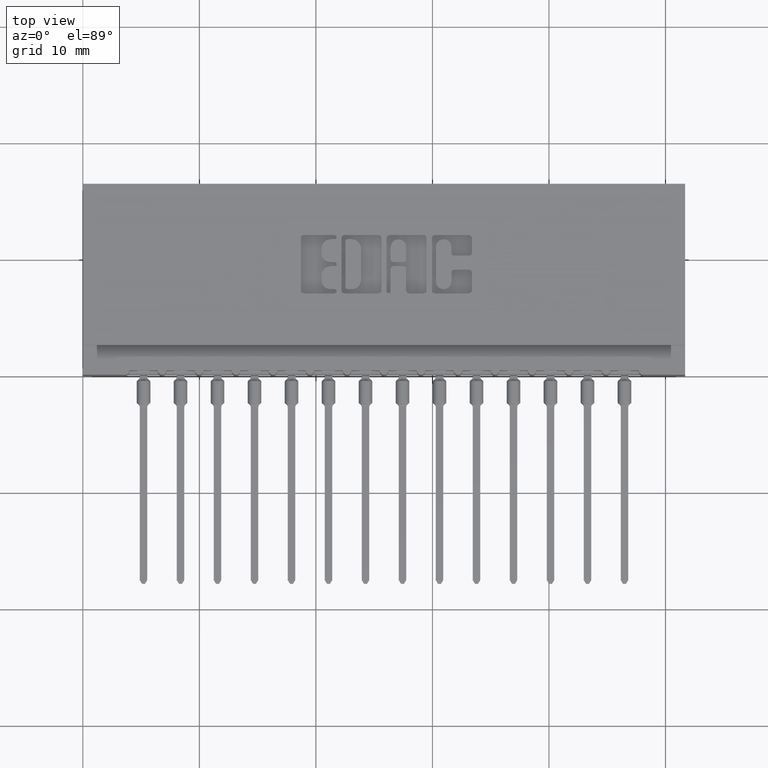
[diagram: clean part render]
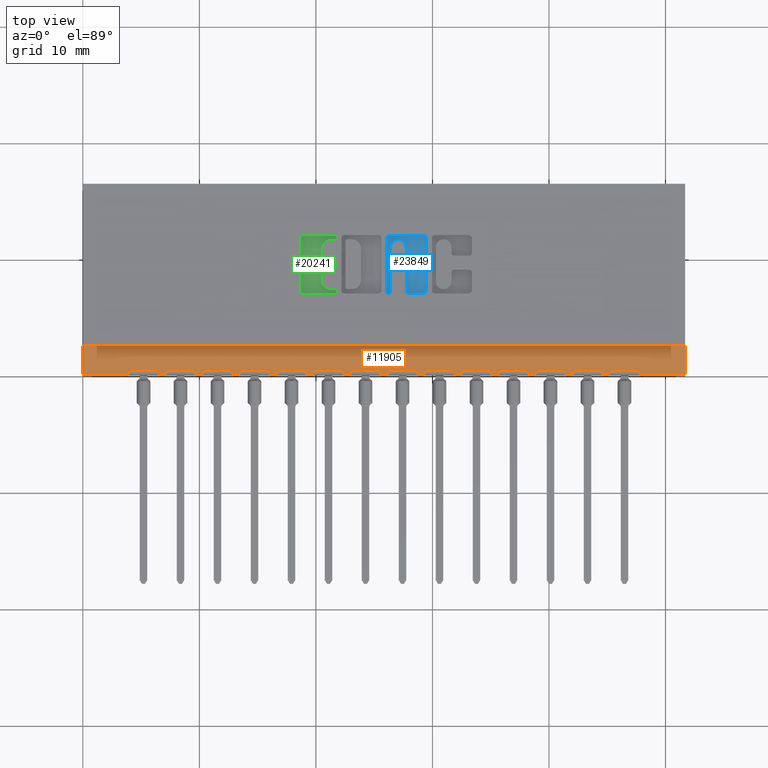
[diagram: same view with three faces highlighted in distinct colors, each labeled with its STEP entity id]
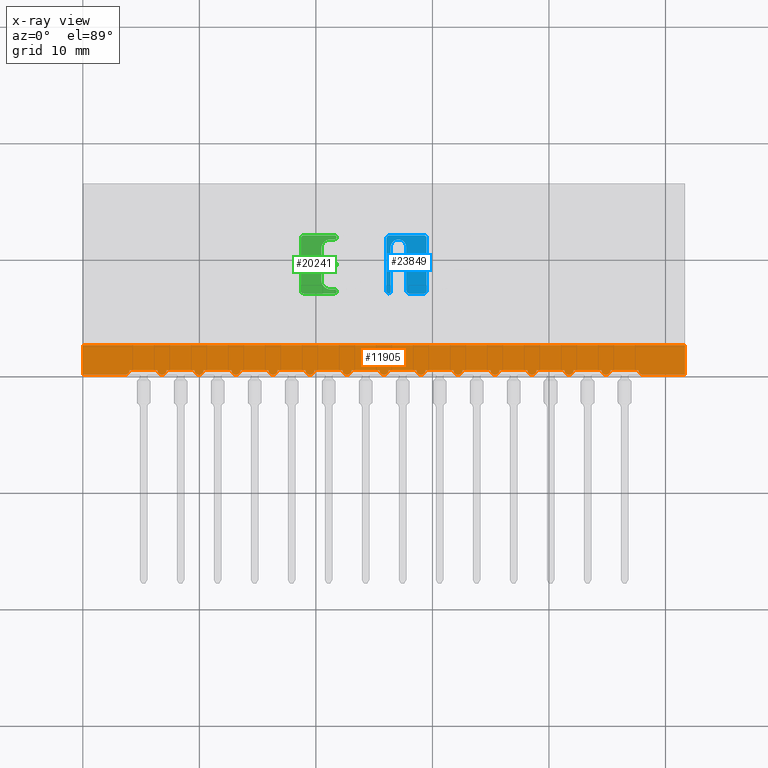
[diagram: x-ray of the same camera — body ghosted, the three highlighted faces saturated]
A machine part, top view with three faces highlighted in distinct colors.
The next image is the same camera in x-ray (body ghosted, the three faces saturated) — at least one of them is partly hidden behind the body in this view.
Their STEP definitions:

[orange] entity #11905 — the highlighted planar face has unit normal (0, 0, -1).
#86 = CARTESIAN_POINT ( 'NONE',  ( 1.782499999999999529, 0.01499999999999997169, -0.02500000000000000486 ) ) ;
#128 = LINE ( 'NONE', #6222, #22510 ) ;
#239 = EDGE_CURVE ( 'NONE', #12736, #5814, #24389, .T. ) ;
#518 = CARTESIAN_POINT ( 'NONE',  ( 1.407499999999999751, 0.01499999999999997169, -0.02500000000000000486 ) ) ;
#655 = DIRECTION ( 'NONE',  ( 1.000000000000000000, 0.0000000000000000000, 0.0000000000000000000 ) ) ;
#848 = AXIS2_PLACEMENT_3D ( 'NONE', #22015, #18067, #655 ) ;
#864 = VECTOR ( 'NONE', #9480, 39.37007874015748143 ) ;
#1038 = CIRCLE ( 'NONE', #12799, 0.01499999999999997689 ) ;
#1082 = EDGE_CURVE ( 'NONE', #12365, #24422, #5032, .T. ) ;
#1098 = DIRECTION ( 'NONE',  ( 1.000000000000000000, -0.0000000000000000000, -2.307304048702925122E-16 ) ) ;
#1166 = VERTEX_POINT ( 'NONE', #14142 ) ;
#1418 = CARTESIAN_POINT ( 'NONE',  ( 1.558999999999999719, 0.01499999999999999424, -0.02500000000000003608 ) ) ;
#1553 = DIRECTION ( 'NONE',  ( 1.000000000000000000, 0.0000000000000000000, 0.0000000000000000000 ) ) ;
#1560 = CIRCLE ( 'NONE', #1974, 0.01499999999999997689 ) ;
#1640 = ORIENTED_EDGE ( 'NONE', *, *, #19123, .F. ) ;
#1650 = LINE ( 'NONE', #7605, #3839 ) ;
#1698 = EDGE_CURVE ( 'NONE', #16683, #14147, #5165, .T. ) ;
#1737 = CARTESIAN_POINT ( 'NONE',  ( 1.502499999999999503, 0.01499999999999997169, -0.02500000000000000486 ) ) ;
#1791 = VERTEX_POINT ( 'NONE', #10758 ) ;
#1807 = CARTESIAN_POINT ( 'NONE',  ( 2.035000000000000142, 0.0000000000000000000, -0.02500000000000000486 ) ) ;
#1940 = VECTOR ( 'NONE', #15747, 39.37007874015748143 ) ;
#1974 = AXIS2_PLACEMENT_3D ( 'NONE', #15631, #17931, #17674 ) ;
#2009 = VECTOR ( 'NONE', #10095, 39.37007874015748143 ) ;
#2016 = DIRECTION ( 'NONE',  ( -0.0000000000000000000, -1.000000000000000000, -0.0000000000000000000 ) ) ;
#2036 = AXIS2_PLACEMENT_3D ( 'NONE', #11647, #17259, #15342 ) ;
#2233 = ORIENTED_EDGE ( 'NONE', *, *, #2770, .T. ) ;
#2296 = EDGE_CURVE ( 'NONE', #4362, #10948, #9321, .T. ) ;
#2431 = CARTESIAN_POINT ( 'NONE',  ( 0.0000000000000000000, 0.0000000000000000000, -0.02500000000000000486 ) ) ;
#2770 = EDGE_CURVE ( 'NONE', #19837, #16616, #11321, .T. ) ;
#2775 = CARTESIAN_POINT ( 'NONE',  ( 2.035000000000000142, 0.0000000000000000000, -0.02500000000000000486 ) ) ;
#2998 = CARTESIAN_POINT ( 'NONE',  ( 1.127499999999999725, 0.01499999999999997169, -0.02500000000000000486 ) ) ;
#3040 = VERTEX_POINT ( 'NONE', #10912 ) ;
#3240 = DIRECTION ( 'NONE',  ( 1.000000000000000000, 0.0000000000000000000, 0.0000000000000000000 ) ) ;
#3346 = DIRECTION ( 'NONE',  ( 1.000000000000000000, 0.0000000000000000000, 0.0000000000000000000 ) ) ;
#3575 = AXIS2_PLACEMENT_3D ( 'NONE', #18047, #14105, #21861 ) ;
#3669 = CARTESIAN_POINT ( 'NONE',  ( 0.3089999999999997193, 0.01499999999999999424, -0.02500000000000003608 ) ) ;
#3799 = CARTESIAN_POINT ( 'NONE',  ( 1.252499999999999503, 0.01499999999999997169, -0.02500000000000000486 ) ) ;
#3839 = VECTOR ( 'NONE', #11808, 39.37007874015748143 ) ;
#3852 = CARTESIAN_POINT ( 'NONE',  ( 1.267499999999999627, 0.01499999999999997169, -0.02500000000000000486 ) ) ;
#3895 = CARTESIAN_POINT ( 'NONE',  ( 0.6574999999999997513, 0.01499999999999997169, -0.02500000000000000486 ) ) ;
#3917 = ORIENTED_EDGE ( 'NONE', *, *, #7296, .T. ) ;
#3923 = CARTESIAN_POINT ( 'NONE',  ( 0.2524999999999996692, 0.01499999999999997169, -0.02500000000000000486 ) ) ;
#3973 = CIRCLE ( 'NONE', #11287, 0.01499999999999997689 ) ;
#4150 = DIRECTION ( 'NONE',  ( 1.000000000000000000, -0.0000000000000000000, -2.307304048702925122E-16 ) ) ;
#4159 = LINE ( 'NONE', #18022, #20676 ) ;
#4362 = VERTEX_POINT ( 'NONE', #7192 ) ;
#4387 = ORIENTED_EDGE ( 'NONE', *, *, #12747, .F. ) ;
#4582 = ORIENTED_EDGE ( 'NONE', *, *, #16690, .T. ) ;
#4599 = CIRCLE ( 'NONE', #8641, 0.01499999999999997689 ) ;
#4631 = DIRECTION ( 'NONE',  ( -0.0000000000000000000, 0.0000000000000000000, 1.000000000000000000 ) ) ;
#4911 = CARTESIAN_POINT ( 'NONE',  ( 1.377499999999999725, 0.01499999999999997169, -0.02500000000000000486 ) ) ;
#5001 = DIRECTION ( 'NONE',  ( 1.000000000000000000, 0.0000000000000000000, 0.0000000000000000000 ) ) ;
#5032 = CIRCLE ( 'NONE', #24917, 0.01499999999999997689 ) ;
#5071 = DIRECTION ( 'NONE',  ( 1.000000000000000000, -0.0000000000000000000, -2.307304048702925122E-16 ) ) ;
#5099 = AXIS2_PLACEMENT_3D ( 'NONE', #23046, #15036, #1553 ) ;
#5133 = ORIENTED_EDGE ( 'NONE', *, *, #18195, .T. ) ;
#5148 = ORIENTED_EDGE ( 'NONE', *, *, #19202, .T. ) ;
#5165 = LINE ( 'NONE', #8976, #13189 ) ;
#5205 = ORIENTED_EDGE ( 'NONE', *, *, #22680, .T. ) ;
#5626 = CARTESIAN_POINT ( 'NONE',  ( 0.5174999999999996270, 0.01499999999999997169, -0.02500000000000000486 ) ) ;
#5647 = AXIS2_PLACEMENT_3D ( 'NONE', #23363, #11408, #11652 ) ;
#5682 = EDGE_CURVE ( 'NONE', #14993, #12365, #19050, .T. ) ;
#5686 = EDGE_CURVE ( 'NONE', #11686, #6920, #24530, .T. ) ;
#5814 = VERTEX_POINT ( 'NONE', #12054 ) ;
#5866 = AXIS2_PLACEMENT_3D ( 'NONE', #15954, #10230, #5897 ) ;
#5897 = DIRECTION ( 'NONE',  ( 1.000000000000000000, 0.0000000000000000000, 0.0000000000000000000 ) ) ;
#6061 = VERTEX_POINT ( 'NONE', #20814 ) ;
#6192 = LINE ( 'NONE', #7617, #23566 ) ;
#6222 = CARTESIAN_POINT ( 'NONE',  ( 1.433999999999999719, 0.01499999999999999424, -0.02500000000000003608 ) ) ;
#6394 = CARTESIAN_POINT ( 'NONE',  ( 0.6274999999999996136, 0.01499999999999997169, -0.02500000000000000486 ) ) ;
#6512 = DIRECTION ( 'NONE',  ( 1.000000000000000000, 0.0000000000000000000, 0.0000000000000000000 ) ) ;
#6513 = VERTEX_POINT ( 'NONE', #21128 ) ;
#6791 = VERTEX_POINT ( 'NONE', #3799 ) ;
#6861 = ORIENTED_EDGE ( 'NONE', *, *, #9540, .T. ) ;
#6896 = CARTESIAN_POINT ( 'NONE',  ( 1.517499999999999849, 0.01499999999999997169, -0.02500000000000000486 ) ) ;
#6920 = VERTEX_POINT ( 'NONE', #10285 ) ;
#6932 = CARTESIAN_POINT ( 'NONE',  ( 0.1574999999999997236, 0.01499999999999997169, -0.02500000000000000486 ) ) ;
#6933 = CARTESIAN_POINT ( 'NONE',  ( 1.642499999999999849, 0.01499999999999997169, -0.02500000000000000486 ) ) ;
#6967 = CARTESIAN_POINT ( 'NONE',  ( 0.6839999999999997193, 0.01499999999999999424, -0.02500000000000003608 ) ) ;
#7073 = VERTEX_POINT ( 'NONE', #10887 ) ;
#7177 = DIRECTION ( 'NONE',  ( -0.0000000000000000000, 0.0000000000000000000, 1.000000000000000000 ) ) ;
#7192 = CARTESIAN_POINT ( 'NONE',  ( 0.1424999999999997102, 0.0000000000000000000, -0.02500000000000000486 ) ) ;
#7284 = VERTEX_POINT ( 'NONE', #21569 ) ;
#7296 = EDGE_CURVE ( 'NONE', #19547, #7284, #9868, .T. ) ;
#7465 = CARTESIAN_POINT ( 'NONE',  ( 1.808999999999999719, 0.01499999999999999424, -0.02500000000000003608 ) ) ;
#7517 = DIRECTION ( 'NONE',  ( -1.000000000000000000, 0.0000000000000000000, -0.0000000000000000000 ) ) ;
#7605 = CARTESIAN_POINT ( 'NONE',  ( 0.5589999999999997193, 0.01499999999999999424, -0.02500000000000003608 ) ) ;
#7617 = CARTESIAN_POINT ( 'NONE',  ( 2.035000000000000142, 0.1000000000000000056, -0.02500000000000000486 ) ) ;
#7738 = CARTESIAN_POINT ( 'NONE',  ( 2.035000000000000142, 0.0000000000000000000, -0.02500000000000000486 ) ) ;
#7913 = DIRECTION ( 'NONE',  ( -0.0000000000000000000, 0.0000000000000000000, 1.000000000000000000 ) ) ;
#8056 = LINE ( 'NONE', #15822, #2009 ) ;
#8525 = EDGE_LOOP ( 'NONE', ( #4582, #11789, #16206, #20342, #1640, #17658, #14985, #11183, #4387, #2233, #5133, #18876, #16804, #9457, #11642, #19101, #14374, #18506, #5148, #21639, #25037, #11674, #17708, #12214, #18732, #19326, #5205, #10789, #20986, #15921, #13549, #6861, #14600, #3917 ) ) ;
#8641 = AXIS2_PLACEMENT_3D ( 'NONE', #3852, #7913, #9581 ) ;
#8732 = EDGE_CURVE ( 'NONE', #10570, #6791, #11382, .T. ) ;
#8976 = CARTESIAN_POINT ( 'NONE',  ( 1.058999999999999719, 0.01499999999999999424, -0.02500000000000003608 ) ) ;
#9193 = CARTESIAN_POINT ( 'NONE',  ( 2.035000000000000142, 0.1000000000000000056, -0.02500000000000000486 ) ) ;
#9226 = DIRECTION ( 'NONE',  ( 1.000000000000000000, -0.0000000000000000000, -2.307304048702925122E-16 ) ) ;
#9321 = LINE ( 'NONE', #21280, #12588 ) ;
#9377 = AXIS2_PLACEMENT_3D ( 'NONE', #14482, #12097, #10901 ) ;
#9432 = FACE_OUTER_BOUND ( 'NONE', #8525, .T. ) ;
#9457 = ORIENTED_EDGE ( 'NONE', *, *, #5682, .T. ) ;
#9480 = DIRECTION ( 'NONE',  ( 1.000000000000000000, -0.0000000000000000000, -2.307304048702925122E-16 ) ) ;
#9511 = EDGE_CURVE ( 'NONE', #21457, #18239, #6192, .T. ) ;
#9540 = EDGE_CURVE ( 'NONE', #1166, #3040, #13483, .T. ) ;
#9546 = AXIS2_PLACEMENT_3D ( 'NONE', #24352, #7177, #22459 ) ;
#9581 = DIRECTION ( 'NONE',  ( 1.000000000000000000, 0.0000000000000000000, 0.0000000000000000000 ) ) ;
#9722 = CARTESIAN_POINT ( 'NONE',  ( 1.183999999999999719, 0.01499999999999999424, -0.02500000000000003608 ) ) ;
#9793 = VECTOR ( 'NONE', #1098, 39.37007874015748143 ) ;
#9803 = PLANE ( 'NONE',  #23219 ) ;
#9868 = LINE ( 'NONE', #13554, #17390 ) ;
#10095 = DIRECTION ( 'NONE',  ( 1.000000000000000000, -0.0000000000000000000, -2.307304048702925122E-16 ) ) ;
#10230 = DIRECTION ( 'NONE',  ( -0.0000000000000000000, 0.0000000000000000000, 1.000000000000000000 ) ) ;
#10285 = CARTESIAN_POINT ( 'NONE',  ( 0.3774999999999996692, 0.01499999999999997169, -0.02500000000000000486 ) ) ;
#10459 = EDGE_CURVE ( 'NONE', #23257, #22394, #11775, .T. ) ;
#10570 = VERTEX_POINT ( 'NONE', #14151 ) ;
#10735 = EDGE_CURVE ( 'NONE', #22394, #7073, #11582, .T. ) ;
#10758 = CARTESIAN_POINT ( 'NONE',  ( 2.035000000000000142, 0.0000000000000000000, -0.02500000000000000486 ) ) ;
#10789 = ORIENTED_EDGE ( 'NONE', *, *, #18829, .T. ) ;
#10887 = CARTESIAN_POINT ( 'NONE',  ( 1.002499999999999725, 0.01499999999999997169, -0.02500000000000000486 ) ) ;
#10901 = DIRECTION ( 'NONE',  ( 1.000000000000000000, 0.0000000000000000000, 0.0000000000000000000 ) ) ;
#10912 = CARTESIAN_POINT ( 'NONE',  ( 1.627499999999999503, 0.01499999999999997169, -0.02500000000000000486 ) ) ;
#10930 = EDGE_CURVE ( 'NONE', #11599, #12736, #13412, .T. ) ;
#10948 = VERTEX_POINT ( 'NONE', #2431 ) ;
#10997 = DIRECTION ( 'NONE',  ( -0.0000000000000000000, 0.0000000000000000000, 1.000000000000000000 ) ) ;
#11183 = ORIENTED_EDGE ( 'NONE', *, *, #2296, .F. ) ;
#11287 = AXIS2_PLACEMENT_3D ( 'NONE', #14229, #21608, #14353 ) ;
#11321 = LINE ( 'NONE', #24676, #23440 ) ;
#11382 = LINE ( 'NONE', #9722, #864 ) ;
#11394 = VERTEX_POINT ( 'NONE', #1737 ) ;
#11408 = DIRECTION ( 'NONE',  ( -0.0000000000000000000, 0.0000000000000000000, 1.000000000000000000 ) ) ;
#11484 = DIRECTION ( 'NONE',  ( -1.000000000000000000, -0.0000000000000000000, -0.0000000000000000000 ) ) ;
#11553 = DIRECTION ( 'NONE',  ( 1.000000000000000000, -0.0000000000000000000, -2.307304048702925122E-16 ) ) ;
#11582 = LINE ( 'NONE', #21252, #21133 ) ;
#11599 = VERTEX_POINT ( 'NONE', #6394 ) ;
#11642 = ORIENTED_EDGE ( 'NONE', *, *, #1082, .T. ) ;
#11647 = CARTESIAN_POINT ( 'NONE',  ( 0.1424999999999997102, 0.01499999999999997169, -0.02500000000000000486 ) ) ;
#11651 = CARTESIAN_POINT ( 'NONE',  ( 1.657499999999999529, 0.01499999999999997169, -0.02500000000000000486 ) ) ;
#11652 = DIRECTION ( 'NONE',  ( 1.000000000000000000, 0.0000000000000000000, 0.0000000000000000000 ) ) ;
#11674 = ORIENTED_EDGE ( 'NONE', *, *, #10735, .T. ) ;
#11686 = VERTEX_POINT ( 'NONE', #14778 ) ;
#11693 = DIRECTION ( 'NONE',  ( 1.000000000000000000, -0.0000000000000000000, -2.307304048702925122E-16 ) ) ;
#11759 = AXIS2_PLACEMENT_3D ( 'NONE', #20005, #15939, #6512 ) ;
#11775 = CIRCLE ( 'NONE', #11759, 0.01499999999999997689 ) ;
#11789 = ORIENTED_EDGE ( 'NONE', *, *, #23373, .T. ) ;
#11802 = CARTESIAN_POINT ( 'NONE',  ( 0.5024999999999996136, 0.01499999999999997169, -0.02500000000000000486 ) ) ;
#11808 = DIRECTION ( 'NONE',  ( 1.000000000000000000, -0.0000000000000000000, -2.307304048702925122E-16 ) ) ;
#11905 = ADVANCED_FACE ( 'NONE', ( #9432 ), #9803, .F. ) ;
#11943 = LINE ( 'NONE', #7738, #24720 ) ;
#12054 = CARTESIAN_POINT ( 'NONE',  ( 0.7524999999999997247, 0.01499999999999997169, -0.02500000000000000486 ) ) ;
#12097 = DIRECTION ( 'NONE',  ( -0.0000000000000000000, 0.0000000000000000000, 1.000000000000000000 ) ) ;
#12179 = VECTOR ( 'NONE', #17306, 39.37007874015748143 ) ;
#12214 = ORIENTED_EDGE ( 'NONE', *, *, #1698, .T. ) ;
#12365 = VERTEX_POINT ( 'NONE', #11802 ) ;
#12588 = VECTOR ( 'NONE', #11484, 39.37007874015748143 ) ;
#12602 = CIRCLE ( 'NONE', #2036, 0.01500000000000001159 ) ;
#12661 = CARTESIAN_POINT ( 'NONE',  ( 0.8089999999999997193, 0.01499999999999999424, -0.02500000000000003608 ) ) ;
#12736 = VERTEX_POINT ( 'NONE', #3895 ) ;
#12747 = EDGE_CURVE ( 'NONE', #19837, #4362, #12602, .T. ) ;
#12799 = AXIS2_PLACEMENT_3D ( 'NONE', #6896, #4631, #5001 ) ;
#13134 = VECTOR ( 'NONE', #17138, 39.37007874015748143 ) ;
#13189 = VECTOR ( 'NONE', #9226, 39.37007874015748143 ) ;
#13412 = CIRCLE ( 'NONE', #848, 0.01499999999999997689 ) ;
#13483 = LINE ( 'NONE', #1418, #12179 ) ;
#13547 = EDGE_CURVE ( 'NONE', #24422, #11599, #1650, .T. ) ;
#13549 = ORIENTED_EDGE ( 'NONE', *, *, #14664, .T. ) ;
#13554 = CARTESIAN_POINT ( 'NONE',  ( 1.683999999999999497, 0.01499999999999999424, -0.02500000000000003608 ) ) ;
#13709 = CARTESIAN_POINT ( 'NONE',  ( 1.892499999999999627, 0.0000000000000000000, -0.02500000000000000486 ) ) ;
#13873 = VECTOR ( 'NONE', #23009, 39.37007874015748143 ) ;
#14105 = DIRECTION ( 'NONE',  ( -0.0000000000000000000, 0.0000000000000000000, 1.000000000000000000 ) ) ;
#14142 = CARTESIAN_POINT ( 'NONE',  ( 1.532499999999999529, 0.01499999999999997169, -0.02500000000000000486 ) ) ;
#14147 = VERTEX_POINT ( 'NONE', #2998 ) ;
#14151 = CARTESIAN_POINT ( 'NONE',  ( 1.157499999999999751, 0.01499999999999997169, -0.02500000000000000486 ) ) ;
#14229 = CARTESIAN_POINT ( 'NONE',  ( 1.767499999999999627, 0.01499999999999997169, -0.02500000000000000486 ) ) ;
#14251 = EDGE_CURVE ( 'NONE', #6920, #14993, #17264, .T. ) ;
#14353 = DIRECTION ( 'NONE',  ( 1.000000000000000000, 0.0000000000000000000, 0.0000000000000000000 ) ) ;
#14374 = ORIENTED_EDGE ( 'NONE', *, *, #10930, .T. ) ;
#14482 = CARTESIAN_POINT ( 'NONE',  ( 1.392499999999999627, 0.01499999999999997169, -0.02500000000000000486 ) ) ;
#14506 = EDGE_CURVE ( 'NONE', #14147, #10570, #16847, .T. ) ;
#14543 = CIRCLE ( 'NONE', #3575, 0.01499999999999997689 ) ;
#14600 = ORIENTED_EDGE ( 'NONE', *, *, #18440, .T. ) ;
#14664 = EDGE_CURVE ( 'NONE', #11394, #1166, #1038, .T. ) ;
#14764 = EDGE_CURVE ( 'NONE', #7073, #16683, #24988, .T. ) ;
#14778 = CARTESIAN_POINT ( 'NONE',  ( 0.2824999999999996958, 0.01499999999999997169, -0.02500000000000000486 ) ) ;
#14985 = ORIENTED_EDGE ( 'NONE', *, *, #18379, .T. ) ;
#14993 = VERTEX_POINT ( 'NONE', #24174 ) ;
#15036 = DIRECTION ( 'NONE',  ( -0.0000000000000000000, 0.0000000000000000000, 1.000000000000000000 ) ) ;
#15090 = VECTOR ( 'NONE', #11553, 39.37007874015748143 ) ;
#15342 = DIRECTION ( 'NONE',  ( 1.000000000000000000, 0.0000000000000000000, 0.0000000000000000000 ) ) ;
#15631 = CARTESIAN_POINT ( 'NONE',  ( 0.7674999999999996270, 0.01499999999999997169, -0.02500000000000000486 ) ) ;
#15747 = DIRECTION ( 'NONE',  ( -1.000000000000000000, -0.0000000000000000000, -0.0000000000000000000 ) ) ;
#15759 = DIRECTION ( 'NONE',  ( 1.000000000000000000, -0.0000000000000000000, -2.307304048702925122E-16 ) ) ;
#15822 = CARTESIAN_POINT ( 'NONE',  ( 1.308999999999999941, 0.01499999999999999424, -0.02500000000000003608 ) ) ;
#15864 = DIRECTION ( 'NONE',  ( -1.000000000000000000, -0.0000000000000000000, -0.0000000000000000000 ) ) ;
#15921 = ORIENTED_EDGE ( 'NONE', *, *, #24680, .T. ) ;
#15933 = VERTEX_POINT ( 'NONE', #86 ) ;
#15939 = DIRECTION ( 'NONE',  ( -0.0000000000000000000, 0.0000000000000000000, 1.000000000000000000 ) ) ;
#15954 = CARTESIAN_POINT ( 'NONE',  ( 1.142499999999999627, 0.01499999999999997169, -0.02500000000000000486 ) ) ;
#16088 = VECTOR ( 'NONE', #5071, 39.37007874015748143 ) ;
#16206 = ORIENTED_EDGE ( 'NONE', *, *, #16777, .T. ) ;
#16235 = DIRECTION ( 'NONE',  ( -0.0000000000000000000, -1.000000000000000000, -0.0000000000000000000 ) ) ;
#16262 = CARTESIAN_POINT ( 'NONE',  ( 1.032499999999999751, 0.01499999999999997169, -0.02500000000000000486 ) ) ;
#16616 = VERTEX_POINT ( 'NONE', #3923 ) ;
#16642 = VERTEX_POINT ( 'NONE', #13709 ) ;
#16683 = VERTEX_POINT ( 'NONE', #16262 ) ;
#16690 = EDGE_CURVE ( 'NONE', #7284, #15933, #3973, .T. ) ;
#16764 = EDGE_CURVE ( 'NONE', #1791, #16642, #21738, .T. ) ;
#16777 = EDGE_CURVE ( 'NONE', #6061, #16642, #14543, .T. ) ;
#16804 = ORIENTED_EDGE ( 'NONE', *, *, #14251, .T. ) ;
#16847 = CIRCLE ( 'NONE', #5866, 0.01499999999999997689 ) ;
#17030 = CIRCLE ( 'NONE', #20286, 0.01499999999999997689 ) ;
#17138 = DIRECTION ( 'NONE',  ( 1.000000000000000000, -0.0000000000000000000, -2.307304048702925122E-16 ) ) ;
#17194 = DIRECTION ( 'NONE',  ( 0.0000000000000000000, 0.0000000000000000000, -1.000000000000000000 ) ) ;
#17259 = DIRECTION ( 'NONE',  ( 0.0000000000000000000, -0.0000000000000000000, -1.000000000000000000 ) ) ;
#17264 = CIRCLE ( 'NONE', #9546, 0.01499999999999997689 ) ;
#17306 = DIRECTION ( 'NONE',  ( 1.000000000000000000, -0.0000000000000000000, -2.307304048702925122E-16 ) ) ;
#17390 = VECTOR ( 'NONE', #4150, 39.37007874015748143 ) ;
#17658 = ORIENTED_EDGE ( 'NONE', *, *, #9511, .T. ) ;
#17674 = DIRECTION ( 'NONE',  ( 1.000000000000000000, 0.0000000000000000000, 0.0000000000000000000 ) ) ;
#17708 = ORIENTED_EDGE ( 'NONE', *, *, #14764, .T. ) ;
#17931 = DIRECTION ( 'NONE',  ( -0.0000000000000000000, 0.0000000000000000000, 1.000000000000000000 ) ) ;
#18022 = CARTESIAN_POINT ( 'NONE',  ( 0.0000000000000000000, 0.0000000000000000000, -0.02500000000000000486 ) ) ;
#18047 = CARTESIAN_POINT ( 'NONE',  ( 1.892499999999999627, 0.01499999999999997169, -0.02500000000000000486 ) ) ;
#18067 = DIRECTION ( 'NONE',  ( -0.0000000000000000000, 0.0000000000000000000, 1.000000000000000000 ) ) ;
#18195 = EDGE_CURVE ( 'NONE', #16616, #11686, #24745, .T. ) ;
#18239 = VERTEX_POINT ( 'NONE', #19401 ) ;
#18379 = EDGE_CURVE ( 'NONE', #18239, #10948, #4159, .T. ) ;
#18440 = EDGE_CURVE ( 'NONE', #3040, #19547, #17030, .T. ) ;
#18506 = ORIENTED_EDGE ( 'NONE', *, *, #239, .T. ) ;
#18732 = ORIENTED_EDGE ( 'NONE', *, *, #14506, .T. ) ;
#18829 = EDGE_CURVE ( 'NONE', #6513, #23570, #8056, .T. ) ;
#18876 = ORIENTED_EDGE ( 'NONE', *, *, #5686, .T. ) ;
#19050 = LINE ( 'NONE', #22754, #15090 ) ;
#19101 = ORIENTED_EDGE ( 'NONE', *, *, #13547, .T. ) ;
#19123 = EDGE_CURVE ( 'NONE', #21457, #1791, #11943, .T. ) ;
#19202 = EDGE_CURVE ( 'NONE', #5814, #19714, #1560, .T. ) ;
#19326 = ORIENTED_EDGE ( 'NONE', *, *, #8732, .T. ) ;
#19401 = CARTESIAN_POINT ( 'NONE',  ( 0.0000000000000000000, 0.1000000000000000056, -0.02500000000000000486 ) ) ;
#19547 = VERTEX_POINT ( 'NONE', #11651 ) ;
#19714 = VERTEX_POINT ( 'NONE', #22837 ) ;
#19837 = VERTEX_POINT ( 'NONE', #6932 ) ;
#20005 = CARTESIAN_POINT ( 'NONE',  ( 0.8924999999999997380, 0.01499999999999997169, -0.02500000000000000486 ) ) ;
#20286 = AXIS2_PLACEMENT_3D ( 'NONE', #6933, #10997, #3240 ) ;
#20342 = ORIENTED_EDGE ( 'NONE', *, *, #16764, .F. ) ;
#20448 = EDGE_CURVE ( 'NONE', #23570, #24749, #23198, .T. ) ;
#20486 = CARTESIAN_POINT ( 'NONE',  ( 0.5324999999999997513, 0.01499999999999997169, -0.02500000000000000486 ) ) ;
#20676 = VECTOR ( 'NONE', #16235, 39.37007874015748143 ) ;
#20814 = CARTESIAN_POINT ( 'NONE',  ( 1.877499999999999503, 0.01499999999999997169, -0.02500000000000000486 ) ) ;
#20874 = EDGE_CURVE ( 'NONE', #19714, #23257, #23870, .T. ) ;
#20986 = ORIENTED_EDGE ( 'NONE', *, *, #20448, .T. ) ;
#21077 = LINE ( 'NONE', #7465, #13134 ) ;
#21122 = DIRECTION ( 'NONE',  ( 1.000000000000000000, -0.0000000000000000000, -2.307304048702925122E-16 ) ) ;
#21128 = CARTESIAN_POINT ( 'NONE',  ( 1.282499999999999751, 0.01499999999999997169, -0.02500000000000000486 ) ) ;
#21133 = VECTOR ( 'NONE', #11693, 39.37007874015748143 ) ;
#21252 = CARTESIAN_POINT ( 'NONE',  ( 0.9339999999999996083, 0.01499999999999999424, -0.02500000000000003608 ) ) ;
#21280 = CARTESIAN_POINT ( 'NONE',  ( 2.035000000000000142, 0.0000000000000000000, -0.02500000000000000486 ) ) ;
#21457 = VERTEX_POINT ( 'NONE', #9193 ) ;
#21569 = CARTESIAN_POINT ( 'NONE',  ( 1.752499999999999503, 0.01499999999999997169, -0.02500000000000000486 ) ) ;
#21608 = DIRECTION ( 'NONE',  ( -0.0000000000000000000, 0.0000000000000000000, 1.000000000000000000 ) ) ;
#21639 = ORIENTED_EDGE ( 'NONE', *, *, #20874, .T. ) ;
#21738 = LINE ( 'NONE', #2775, #1940 ) ;
#21861 = DIRECTION ( 'NONE',  ( 1.000000000000000000, 0.0000000000000000000, 0.0000000000000000000 ) ) ;
#22015 = CARTESIAN_POINT ( 'NONE',  ( 0.6424999999999996270, 0.01499999999999997169, -0.02500000000000000486 ) ) ;
#22394 = VERTEX_POINT ( 'NONE', #24335 ) ;
#22459 = DIRECTION ( 'NONE',  ( 1.000000000000000000, 0.0000000000000000000, 0.0000000000000000000 ) ) ;
#22510 = VECTOR ( 'NONE', #15759, 39.37007874015748143 ) ;
#22680 = EDGE_CURVE ( 'NONE', #6791, #6513, #4599, .T. ) ;
#22754 = CARTESIAN_POINT ( 'NONE',  ( 0.4339999999999996638, 0.01499999999999999424, -0.02500000000000003608 ) ) ;
#22837 = CARTESIAN_POINT ( 'NONE',  ( 0.7824999999999997513, 0.01499999999999997169, -0.02500000000000000486 ) ) ;
#23009 = DIRECTION ( 'NONE',  ( 1.000000000000000000, -0.0000000000000000000, -2.307304048702925122E-16 ) ) ;
#23046 = CARTESIAN_POINT ( 'NONE',  ( 1.017499999999999627, 0.01499999999999997169, -0.02500000000000000486 ) ) ;
#23179 = DIRECTION ( 'NONE',  ( -0.0000000000000000000, 0.0000000000000000000, 1.000000000000000000 ) ) ;
#23198 = CIRCLE ( 'NONE', #9377, 0.01499999999999997689 ) ;
#23219 = AXIS2_PLACEMENT_3D ( 'NONE', #1807, #17194, #7517 ) ;
#23257 = VERTEX_POINT ( 'NONE', #24514 ) ;
#23363 = CARTESIAN_POINT ( 'NONE',  ( 0.2674999999999996825, 0.01499999999999997169, -0.02500000000000000486 ) ) ;
#23373 = EDGE_CURVE ( 'NONE', #15933, #6061, #21077, .T. ) ;
#23440 = VECTOR ( 'NONE', #21122, 39.37007874015748143 ) ;
#23566 = VECTOR ( 'NONE', #15864, 39.37007874015748143 ) ;
#23570 = VERTEX_POINT ( 'NONE', #4911 ) ;
#23870 = LINE ( 'NONE', #12661, #9793 ) ;
#24174 = CARTESIAN_POINT ( 'NONE',  ( 0.4074999999999996958, 0.01499999999999997169, -0.02500000000000000486 ) ) ;
#24335 = CARTESIAN_POINT ( 'NONE',  ( 0.9074999999999996403, 0.01499999999999997169, -0.02500000000000000486 ) ) ;
#24352 = CARTESIAN_POINT ( 'NONE',  ( 0.3924999999999996825, 0.01499999999999997169, -0.02500000000000000486 ) ) ;
#24389 = LINE ( 'NONE', #6967, #16088 ) ;
#24422 = VERTEX_POINT ( 'NONE', #20486 ) ;
#24514 = CARTESIAN_POINT ( 'NONE',  ( 0.8774999999999997247, 0.01499999999999997169, -0.02500000000000000486 ) ) ;
#24530 = LINE ( 'NONE', #3669, #13873 ) ;
#24676 = CARTESIAN_POINT ( 'NONE',  ( 0.1839999999999996916, 0.01499999999999999424, -0.02500000000000003608 ) ) ;
#24680 = EDGE_CURVE ( 'NONE', #24749, #11394, #128, .T. ) ;
#24720 = VECTOR ( 'NONE', #2016, 39.37007874015748143 ) ;
#24745 = CIRCLE ( 'NONE', #5647, 0.01500000000000001159 ) ;
#24749 = VERTEX_POINT ( 'NONE', #518 ) ;
#24917 = AXIS2_PLACEMENT_3D ( 'NONE', #5626, #23179, #3346 ) ;
#24988 = CIRCLE ( 'NONE', #5099, 0.01499999999999997689 ) ;
#25037 = ORIENTED_EDGE ( 'NONE', *, *, #10459, .T. ) ;

[blue] entity #23849 — the highlighted planar face has unit normal (0, 0, 1).
#28 = VECTOR ( 'NONE', #213, 39.37007874015748143 ) ;
#77 = ORIENTED_EDGE ( 'NONE', *, *, #12836, .T. ) ;
#213 = DIRECTION ( 'NONE',  ( 0.0000000000000000000, 1.000000000000000000, -0.0000000000000000000 ) ) ;
#245 = DIRECTION ( 'NONE',  ( -0.0000000000000000000, 0.0000000000000000000, 1.000000000000000000 ) ) ;
#313 = DIRECTION ( 'NONE',  ( -0.0000000000000000000, 0.0000000000000000000, 1.000000000000000000 ) ) ;
#367 = CARTESIAN_POINT ( 'NONE',  ( 1.151729290037010633, 0.2841589681657809008, -0.01000000000000000021 ) ) ;
#448 = FACE_BOUND ( 'NONE', #16321, .T. ) ;
#500 = CIRCLE ( 'NONE', #14698, 0.02625691779516779734 ) ;
#575 = AXIS2_PLACEMENT_3D ( 'NONE', #15044, #3844, #21016 ) ;
#995 = EDGE_CURVE ( 'NONE', #17885, #10833, #19620, .T. ) ;
#1028 = ORIENTED_EDGE ( 'NONE', *, *, #24031, .T. ) ;
#1071 = DIRECTION ( 'NONE',  ( 1.000000000000000000, 0.0000000000000000000, 0.0000000000000000000 ) ) ;
#1113 = CARTESIAN_POINT ( 'NONE',  ( 1.035904381632127391, 0.4608410318342101575, -0.01000000000000000021 ) ) ;
#1117 = EDGE_CURVE ( 'NONE', #4055, #16308, #11522, .T. ) ;
#1245 = CIRCLE ( 'NONE', #21966, 0.009815670203796511215 ) ;
#1307 = EDGE_CURVE ( 'NONE', #8981, #1604, #12680, .T. ) ;
#1328 = DIRECTION ( 'NONE',  ( 1.000000000000000000, 0.0000000000000000000, 0.0000000000000000000 ) ) ;
#1604 = VERTEX_POINT ( 'NONE', #20059 ) ;
#1671 = CARTESIAN_POINT ( 'NONE',  ( 1.082528815100188169, 0.3656290308573498238, -0.01000000000000000021 ) ) ;
#1766 = AXIS2_PLACEMENT_3D ( 'NONE', #18487, #14426, #1071 ) ;
#1815 = VERTEX_POINT ( 'NONE', #6811 ) ;
#1920 = CARTESIAN_POINT ( 'NONE',  ( -1.575889869590912786E-15, 0.3793709691426810915, -0.01000000000000000021 ) ) ;
#2103 = CARTESIAN_POINT ( 'NONE',  ( 1.092344485303982315, 0.3891866393464820106, -0.01000000000000000021 ) ) ;
#2405 = DIRECTION ( 'NONE',  ( 1.000000000000000000, 0.0000000000000000000, 0.0000000000000000000 ) ) ;
#2559 = AXIS2_PLACEMENT_3D ( 'NONE', #24294, #12596, #16667 ) ;
#2850 = CARTESIAN_POINT ( 'NONE',  ( 1.092344485303984758, 0.2841589681657878952, -0.01000000000000000021 ) ) ;
#3262 = AXIS2_PLACEMENT_3D ( 'NONE', #8010, #11960, #21760 ) ;
#3271 = CARTESIAN_POINT ( 'NONE',  ( 1.039830649713646915, 0.2812142671046480302, -0.01000000000000000021 ) ) ;
#3458 = DIRECTION ( 'NONE',  ( 0.0000000000000000000, -1.000000000000000000, 0.0000000000000000000 ) ) ;
#3574 = LINE ( 'NONE', #9431, #13752 ) ;
#3818 = DIRECTION ( 'NONE',  ( -1.000000000000000000, -3.530861605407645268E-14, 0.0000000000000000000 ) ) ;
#3844 = DIRECTION ( 'NONE',  ( -0.0000000000000000000, 0.0000000000000000000, 1.000000000000000000 ) ) ;
#4055 = VERTEX_POINT ( 'NONE', #12601 ) ;
#4118 = VECTOR ( 'NONE', #6990, 39.37007874015748143 ) ;
#4620 = CARTESIAN_POINT ( 'NONE',  ( 1.092344485303982315, 0.0000000000000000000, -0.01000000000000000021 ) ) ;
#4879 = DIRECTION ( 'NONE',  ( 1.000000000000000000, 0.0000000000000000000, 0.0000000000000000000 ) ) ;
#5027 = EDGE_CURVE ( 'NONE', #11731, #9950, #16187, .T. ) ;
#5143 = CARTESIAN_POINT ( 'NONE',  ( 1.049646319917450388, 0.3558133606535456295, -0.01000000000000000021 ) ) ;
#5201 = CARTESIAN_POINT ( 'NONE',  ( 1.026088711428331024, 0.4608410318342101575, -0.01000000000000000021 ) ) ;
#5312 = CARTESIAN_POINT ( 'NONE',  ( 1.026088711428331024, 0.0000000000000000000, -0.01000000000000000021 ) ) ;
#5674 = CARTESIAN_POINT ( 'NONE',  ( 1.161544960240806779, 0.4608410318342010537, -0.01000000000000000021 ) ) ;
#6424 = EDGE_CURVE ( 'NONE', #1815, #18102, #3574, .T. ) ;
#6593 = CARTESIAN_POINT ( 'NONE',  ( 1.092344485303984758, 0.3558133606535435201, -0.01000000000000000021 ) ) ;
#6811 = CARTESIAN_POINT ( 'NONE',  ( 1.039830649713646915, 0.3558133606535456295, -0.01000000000000000021 ) ) ;
#6990 = DIRECTION ( 'NONE',  ( -1.000000000000000000, 0.0000000000000000000, 0.0000000000000000000 ) ) ;
#7224 = VERTEX_POINT ( 'NONE', #5674 ) ;
#7466 = CIRCLE ( 'NONE', #15999, 0.006870969142657995000 ) ;
#7888 = DIRECTION ( 'NONE',  ( -1.000000000000000000, -4.153954829891640784E-15, 0.0000000000000000000 ) ) ;
#7964 = CARTESIAN_POINT ( 'NONE',  ( 1.082528815100185948, 0.3793709691426855879, -0.01000000000000000021 ) ) ;
#8010 = CARTESIAN_POINT ( 'NONE',  ( 1.082528815100185948, 0.3891866393464820106, -0.01000000000000000021 ) ) ;
#8074 = ORIENTED_EDGE ( 'NONE', *, *, #9564, .F. ) ;
#8077 = ORIENTED_EDGE ( 'NONE', *, *, #12524, .T. ) ;
#8155 = ORIENTED_EDGE ( 'NONE', *, *, #11790, .T. ) ;
#8185 = VECTOR ( 'NONE', #7888, 39.37007874015748143 ) ;
#8360 = VERTEX_POINT ( 'NONE', #19290 ) ;
#8767 = ORIENTED_EDGE ( 'NONE', *, *, #10311, .F. ) ;
#8981 = VERTEX_POINT ( 'NONE', #2850 ) ;
#8996 = LINE ( 'NONE', #5312, #9290 ) ;
#9044 = ORIENTED_EDGE ( 'NONE', *, *, #19398, .F. ) ;
#9067 = AXIS2_PLACEMENT_3D ( 'NONE', #12899, #16485, #24235 ) ;
#9290 = VECTOR ( 'NONE', #19158, 39.37007874015748143 ) ;
#9332 = DIRECTION ( 'NONE',  ( 1.000000000000000000, 0.0000000000000000000, 0.0000000000000000000 ) ) ;
#9431 = CARTESIAN_POINT ( 'NONE',  ( 1.039830649713646915, 0.0000000000000000000, -0.01000000000000000021 ) ) ;
#9435 = VECTOR ( 'NONE', #20038, 39.37007874015748143 ) ;
#9564 = EDGE_CURVE ( 'NONE', #10833, #17430, #20990, .T. ) ;
#9743 = AXIS2_PLACEMENT_3D ( 'NONE', #5143, #12880, #1328 ) ;
#9820 = ORIENTED_EDGE ( 'NONE', *, *, #13126, .F. ) ;
#9950 = VERTEX_POINT ( 'NONE', #2103 ) ;
#10128 = VECTOR ( 'NONE', #3818, 39.37007874015748143 ) ;
#10236 = CARTESIAN_POINT ( 'NONE',  ( 0.0000000000000000000, 0.0000000000000000000, -0.01000000000000000021 ) ) ;
#10311 = EDGE_CURVE ( 'NONE', #17430, #1815, #22340, .T. ) ;
#10384 = CARTESIAN_POINT ( 'NONE',  ( 1.039830649713646915, 0.0000000000000000000, -0.01000000000000000021 ) ) ;
#10415 = EDGE_CURVE ( 'NONE', #8981, #17885, #11486, .T. ) ;
#10545 = VERTEX_POINT ( 'NONE', #13898 ) ;
#10833 = VERTEX_POINT ( 'NONE', #1671 ) ;
#10927 = EDGE_CURVE ( 'NONE', #14104, #9950, #24374, .T. ) ;
#11036 = VERTEX_POINT ( 'NONE', #5201 ) ;
#11051 = ORIENTED_EDGE ( 'NONE', *, *, #995, .F. ) ;
#11355 = CARTESIAN_POINT ( 'NONE',  ( 1.092344485303984758, 0.0000000000000000000, -0.01000000000000000021 ) ) ;
#11486 = LINE ( 'NONE', #11355, #17469 ) ;
#11522 = CIRCLE ( 'NONE', #575, 0.009815670203803340821 ) ;
#11550 = ORIENTED_EDGE ( 'NONE', *, *, #5027, .T. ) ;
#11655 = CARTESIAN_POINT ( 'NONE',  ( 1.151729290037010633, 0.2743432979619847001, -0.01000000000000000021 ) ) ;
#11731 = VERTEX_POINT ( 'NONE', #22797 ) ;
#11790 = EDGE_CURVE ( 'NONE', #14104, #16308, #11838, .T. ) ;
#11838 = LINE ( 'NONE', #1920, #8185 ) ;
#11842 = CIRCLE ( 'NONE', #19552, 0.009815670203796237128 ) ;
#11960 = DIRECTION ( 'NONE',  ( -0.0000000000000000000, 0.0000000000000000000, 1.000000000000000000 ) ) ;
#12122 = EDGE_CURVE ( 'NONE', #20715, #1604, #16533, .T. ) ;
#12267 = FACE_OUTER_BOUND ( 'NONE', #20485, .T. ) ;
#12276 = LINE ( 'NONE', #16345, #9435 ) ;
#12386 = EDGE_CURVE ( 'NONE', #20715, #8360, #11842, .T. ) ;
#12524 = EDGE_CURVE ( 'NONE', #10545, #11036, #1245, .T. ) ;
#12596 = DIRECTION ( 'NONE',  ( -0.0000000000000000000, 0.0000000000000000000, 1.000000000000000000 ) ) ;
#12601 = CARTESIAN_POINT ( 'NONE',  ( 1.039830649713646915, 0.3891866393464887830, -0.01000000000000000021 ) ) ;
#12680 = CIRCLE ( 'NONE', #2559, 0.009815670203803203778 ) ;
#12836 = EDGE_CURVE ( 'NONE', #4055, #19420, #23356, .T. ) ;
#12880 = DIRECTION ( 'NONE',  ( -0.0000000000000000000, 0.0000000000000000000, 1.000000000000000000 ) ) ;
#12899 = CARTESIAN_POINT ( 'NONE',  ( 1.151729290037011744, 0.4608410318342104350, -0.01000000000000000021 ) ) ;
#13126 = EDGE_CURVE ( 'NONE', #10545, #22786, #24600, .T. ) ;
#13228 = CARTESIAN_POINT ( 'NONE',  ( 1.066087567508811729, 0.4301670498449322588, -0.01000000000000000021 ) ) ;
#13230 = CARTESIAN_POINT ( 'NONE',  ( -1.290985506876488798E-14, 0.3656290308573115766, -0.01000000000000000021 ) ) ;
#13752 = VECTOR ( 'NONE', #3458, 39.37007874015748143 ) ;
#13898 = CARTESIAN_POINT ( 'NONE',  ( 1.035904381632127391, 0.4706567020380066912, -0.01000000000000000021 ) ) ;
#13910 = ORIENTED_EDGE ( 'NONE', *, *, #22334, .F. ) ;
#14050 = DIRECTION ( 'NONE',  ( 1.000000000000000000, 0.0000000000000000000, 0.0000000000000000000 ) ) ;
#14104 = VERTEX_POINT ( 'NONE', #7964 ) ;
#14141 = ORIENTED_EDGE ( 'NONE', *, *, #21826, .F. ) ;
#14304 = PLANE ( 'NONE',  #15588 ) ;
#14386 = CARTESIAN_POINT ( 'NONE',  ( 1.049646319917450388, 0.3793709691426854214, -0.01000000000000000021 ) ) ;
#14426 = DIRECTION ( 'NONE',  ( -0.0000000000000000000, 0.0000000000000000000, 1.000000000000000000 ) ) ;
#14585 = DIRECTION ( 'NONE',  ( -0.0000000000000000000, 0.0000000000000000000, 1.000000000000000000 ) ) ;
#14698 = AXIS2_PLACEMENT_3D ( 'NONE', #13228, #20987, #22648 ) ;
#14720 = DIRECTION ( 'NONE',  ( 1.000000000000000000, 0.0000000000000000000, 0.0000000000000000000 ) ) ;
#14786 = VECTOR ( 'NONE', #9332, 39.37007874015748143 ) ;
#14931 = CARTESIAN_POINT ( 'NONE',  ( 0.0000000000000000000, 0.4706567020380066912, -0.01000000000000000021 ) ) ;
#15044 = CARTESIAN_POINT ( 'NONE',  ( 1.049646319917450388, 0.3891866393464887830, -0.01000000000000000021 ) ) ;
#15105 = CARTESIAN_POINT ( 'NONE',  ( 1.039830649713646915, 0.4301670624473479809, -0.01000000000000000021 ) ) ;
#15588 = AXIS2_PLACEMENT_3D ( 'NONE', #10236, #313, #14050 ) ;
#15626 = CIRCLE ( 'NONE', #9067, 0.009815670203795690690 ) ;
#15782 = VECTOR ( 'NONE', #19748, 39.37007874015748143 ) ;
#15906 = ORIENTED_EDGE ( 'NONE', *, *, #6424, .F. ) ;
#15999 = AXIS2_PLACEMENT_3D ( 'NONE', #16828, #16700, #4879 ) ;
#16187 = LINE ( 'NONE', #4620, #15782 ) ;
#16308 = VERTEX_POINT ( 'NONE', #14386 ) ;
#16321 = EDGE_LOOP ( 'NONE', ( #14141, #11550, #16542, #8155, #17002, #77 ) ) ;
#16345 = CARTESIAN_POINT ( 'NONE',  ( 1.161544960240806779, 0.0000000000000000000, -0.01000000000000000021 ) ) ;
#16485 = DIRECTION ( 'NONE',  ( -0.0000000000000000000, 0.0000000000000000000, 1.000000000000000000 ) ) ;
#16533 = LINE ( 'NONE', #20849, #4118 ) ;
#16542 = ORIENTED_EDGE ( 'NONE', *, *, #10927, .F. ) ;
#16663 = CARTESIAN_POINT ( 'NONE',  ( 1.026088711428331024, 0.2812142671046480302, -0.01000000000000000021 ) ) ;
#16667 = DIRECTION ( 'NONE',  ( 1.000000000000000000, 0.0000000000000000000, 0.0000000000000000000 ) ) ;
#16700 = DIRECTION ( 'NONE',  ( -0.0000000000000000000, 0.0000000000000000000, 1.000000000000000000 ) ) ;
#16828 = CARTESIAN_POINT ( 'NONE',  ( 1.032959680570987082, 0.2812142671046480302, -0.01000000000000000021 ) ) ;
#17002 = ORIENTED_EDGE ( 'NONE', *, *, #1117, .F. ) ;
#17371 = ORIENTED_EDGE ( 'NONE', *, *, #12386, .T. ) ;
#17430 = VERTEX_POINT ( 'NONE', #24853 ) ;
#17469 = VECTOR ( 'NONE', #17593, 39.37007874015748143 ) ;
#17593 = DIRECTION ( 'NONE',  ( 0.0000000000000000000, 1.000000000000000000, -0.0000000000000000000 ) ) ;
#17761 = ORIENTED_EDGE ( 'NONE', *, *, #12122, .F. ) ;
#17885 = VERTEX_POINT ( 'NONE', #6593 ) ;
#18002 = ORIENTED_EDGE ( 'NONE', *, *, #10415, .F. ) ;
#18031 = ORIENTED_EDGE ( 'NONE', *, *, #1307, .T. ) ;
#18102 = VERTEX_POINT ( 'NONE', #3271 ) ;
#18487 = CARTESIAN_POINT ( 'NONE',  ( 1.082528815100187725, 0.3558133606535528459, -0.01000000000000000021 ) ) ;
#19158 = DIRECTION ( 'NONE',  ( 0.0000000000000000000, 1.000000000000000000, -0.0000000000000000000 ) ) ;
#19290 = CARTESIAN_POINT ( 'NONE',  ( 1.161544960240806779, 0.2841589681657809008, -0.01000000000000000021 ) ) ;
#19398 = EDGE_CURVE ( 'NONE', #24393, #11036, #8996, .T. ) ;
#19420 = VERTEX_POINT ( 'NONE', #15105 ) ;
#19552 = AXIS2_PLACEMENT_3D ( 'NONE', #367, #245, #2405 ) ;
#19620 = CIRCLE ( 'NONE', #1766, 0.009815670203796920609 ) ;
#19748 = DIRECTION ( 'NONE',  ( 0.0000000000000000000, -1.000000000000000000, 0.0000000000000000000 ) ) ;
#20038 = DIRECTION ( 'NONE',  ( 0.0000000000000000000, -1.000000000000000000, 0.0000000000000000000 ) ) ;
#20059 = CARTESIAN_POINT ( 'NONE',  ( 1.102160155507785788, 0.2743432979619847001, -0.01000000000000000021 ) ) ;
#20485 = EDGE_LOOP ( 'NONE', ( #9820, #8077, #9044, #1028, #15906, #8767, #8074, #11051, #18002, #18031, #17761, #17371, #13910, #21828 ) ) ;
#20715 = VERTEX_POINT ( 'NONE', #11655 ) ;
#20728 = CARTESIAN_POINT ( 'NONE',  ( 1.151729290037013964, 0.4706567020380066912, -0.01000000000000000021 ) ) ;
#20849 = CARTESIAN_POINT ( 'NONE',  ( 0.0000000000000000000, 0.2743432979619847001, -0.01000000000000000021 ) ) ;
#20987 = DIRECTION ( 'NONE',  ( -0.0000000000000000000, 0.0000000000000000000, 1.000000000000000000 ) ) ;
#20990 = LINE ( 'NONE', #13230, #10128 ) ;
#21016 = DIRECTION ( 'NONE',  ( 1.000000000000000000, 0.0000000000000000000, 0.0000000000000000000 ) ) ;
#21760 = DIRECTION ( 'NONE',  ( 1.000000000000000000, 0.0000000000000000000, 0.0000000000000000000 ) ) ;
#21826 = EDGE_CURVE ( 'NONE', #11731, #19420, #500, .T. ) ;
#21828 = ORIENTED_EDGE ( 'NONE', *, *, #23578, .T. ) ;
#21966 = AXIS2_PLACEMENT_3D ( 'NONE', #1113, #14585, #14720 ) ;
#22334 = EDGE_CURVE ( 'NONE', #7224, #8360, #12276, .T. ) ;
#22340 = CIRCLE ( 'NONE', #9743, 0.009815670203803203778 ) ;
#22648 = DIRECTION ( 'NONE',  ( 1.000000000000000000, 0.0000000000000000000, 0.0000000000000000000 ) ) ;
#22786 = VERTEX_POINT ( 'NONE', #20728 ) ;
#22797 = CARTESIAN_POINT ( 'NONE',  ( 1.092344485303982315, 0.4301670498449322588, -0.01000000000000000021 ) ) ;
#23356 = LINE ( 'NONE', #10384, #28 ) ;
#23578 = EDGE_CURVE ( 'NONE', #7224, #22786, #15626, .T. ) ;
#23849 = ADVANCED_FACE ( 'NONE', ( #448, #12267 ), #14304, .T. ) ;
#24031 = EDGE_CURVE ( 'NONE', #24393, #18102, #7466, .T. ) ;
#24235 = DIRECTION ( 'NONE',  ( 1.000000000000000000, 0.0000000000000000000, 0.0000000000000000000 ) ) ;
#24294 = CARTESIAN_POINT ( 'NONE',  ( 1.102160155507788009, 0.2841589681657878952, -0.01000000000000000021 ) ) ;
#24374 = CIRCLE ( 'NONE', #3262, 0.009815670203796374171 ) ;
#24393 = VERTEX_POINT ( 'NONE', #16663 ) ;
#24600 = LINE ( 'NONE', #14931, #14786 ) ;
#24853 = CARTESIAN_POINT ( 'NONE',  ( 1.049646319917450388, 0.3656290308573487136, -0.01000000000000000021 ) ) ;

[green] entity #20241 — the highlighted planar face has unit normal (0, 0, 1).
#2 = CIRCLE ( 'NONE', #15431, 0.009815670203805935967 ) ;
#179 = AXIS2_PLACEMENT_3D ( 'NONE', #11530, #1985, #7708 ) ;
#369 = CIRCLE ( 'NONE', #14572, 0.03141014465218178175 ) ;
#659 = CARTESIAN_POINT ( 'NONE',  ( 0.0000000000000000000, 0.3793709691426839226, -0.01000000000000000021 ) ) ;
#911 = AXIS2_PLACEMENT_3D ( 'NONE', #12434, #24133, #6453 ) ;
#1233 = CARTESIAN_POINT ( 'NONE',  ( 0.8057269153529096339, 0.4107811137948584324, -0.01000000000000000021 ) ) ;
#1366 = CARTESIAN_POINT ( 'NONE',  ( 0.8506336065353513609, 0.4637857328953863267, -0.01000000000000000021 ) ) ;
#1465 = EDGE_CURVE ( 'NONE', #5993, #18715, #21450, .T. ) ;
#1831 = VERTEX_POINT ( 'NONE', #16489 ) ;
#1876 = CARTESIAN_POINT ( 'NONE',  ( 0.8575045756779736683, 0.3725000000000204259, -0.01000000000000000021 ) ) ;
#1985 = DIRECTION ( 'NONE',  ( -0.0000000000000000000, 0.0000000000000000000, 1.000000000000000000 ) ) ;
#2006 = AXIS2_PLACEMENT_3D ( 'NONE', #1366, #9114, #7456 ) ;
#2212 = EDGE_CURVE ( 'NONE', #22146, #14553, #24099, .T. ) ;
#2270 = ORIENTED_EDGE ( 'NONE', *, *, #16986, .T. ) ;
#2294 = VERTEX_POINT ( 'NONE', #9579 ) ;
#2437 = DIRECTION ( 'NONE',  ( 1.000000000000000000, 0.0000000000000000000, 0.0000000000000000000 ) ) ;
#2473 = CARTESIAN_POINT ( 'NONE',  ( 0.8575045756779977602, 0.2812142671046480302, -0.01000000000000000021 ) ) ;
#2474 = VECTOR ( 'NONE', #24253, 39.37007874015748143 ) ;
#2487 = ORIENTED_EDGE ( 'NONE', *, *, #6577, .F. ) ;
#2974 = DIRECTION ( 'NONE',  ( -1.000000000000000000, 0.0000000000000000000, 0.0000000000000000000 ) ) ;
#3099 = DIRECTION ( 'NONE',  ( 0.0000000000000000000, -1.000000000000000000, 0.0000000000000000000 ) ) ;
#3263 = DIRECTION ( 'NONE',  ( 1.000000000000000000, 7.203446383881645102E-15, 0.0000000000000000000 ) ) ;
#3291 = AXIS2_PLACEMENT_3D ( 'NONE', #22420, #7263, #24819 ) ;
#3451 = VERTEX_POINT ( 'NONE', #14216 ) ;
#3789 = ORIENTED_EDGE ( 'NONE', *, *, #6605, .T. ) ;
#3924 = EDGE_CURVE ( 'NONE', #2294, #5451, #23435, .T. ) ;
#3995 = EDGE_LOOP ( 'NONE', ( #2487, #4171, #7986, #17909, #22727, #11855, #24800, #24296, #14344, #21485, #2270, #13545, #20498, #18317, #10259, #8809, #17300, #23304, #3789, #15758, #4032 ) ) ;
#4032 = ORIENTED_EDGE ( 'NONE', *, *, #1465, .T. ) ;
#4043 = VECTOR ( 'NONE', #3263, 39.37007874015748143 ) ;
#4054 = VECTOR ( 'NONE', #2974, 39.37007874015748143 ) ;
#4056 = LINE ( 'NONE', #23144, #8939 ) ;
#4171 = ORIENTED_EDGE ( 'NONE', *, *, #7935, .T. ) ;
#4264 = VERTEX_POINT ( 'NONE', #4335 ) ;
#4335 = CARTESIAN_POINT ( 'NONE',  ( 0.8371370600050840327, 0.3656290308573568737, -0.01000000000000000021 ) ) ;
#4438 = CARTESIAN_POINT ( 'NONE',  ( 0.8506336065353100606, 0.3725000000000204259, -0.01000000000000000021 ) ) ;
#5451 = VERTEX_POINT ( 'NONE', #6363 ) ;
#5505 = PLANE ( 'NONE',  #19100 ) ;
#5780 = CARTESIAN_POINT ( 'NONE',  ( 0.8506336065353513609, 0.4569147637527357642, -0.01000000000000000021 ) ) ;
#5837 = VECTOR ( 'NONE', #15132, 39.37007874015748143 ) ;
#5898 = CARTESIAN_POINT ( 'NONE',  ( 0.7463421106199380484, 0.4706567020380327815, -0.01000000000000000021 ) ) ;
#5910 = EDGE_CURVE ( 'NONE', #21767, #8380, #22428, .T. ) ;
#5927 = DIRECTION ( 'NONE',  ( 1.000000000000000000, 0.0000000000000000000, 0.0000000000000000000 ) ) ;
#5940 = DIRECTION ( 'NONE',  ( 0.0000000000000000000, 1.000000000000000000, -0.0000000000000000000 ) ) ;
#5993 = VERTEX_POINT ( 'NONE', #1233 ) ;
#6105 = VERTEX_POINT ( 'NONE', #9363 ) ;
#6131 = DIRECTION ( 'NONE',  ( -1.000000000000000000, -1.189163988687022540E-13, 0.0000000000000000000 ) ) ;
#6190 = VERTEX_POINT ( 'NONE', #10470 ) ;
#6363 = CARTESIAN_POINT ( 'NONE',  ( 0.8371370600051096789, 0.2880852362473086403, -0.01000000000000000021 ) ) ;
#6384 = CARTESIAN_POINT ( 'NONE',  ( -3.425805886175743989E-14, 0.2880852362472091088, -0.01000000000000000021 ) ) ;
#6404 = CARTESIAN_POINT ( 'NONE',  ( 0.8057269153529096339, 0.4255046191005198430, -0.01000000000000000021 ) ) ;
#6453 = DIRECTION ( 'NONE',  ( 1.000000000000000000, 0.0000000000000000000, 0.0000000000000000000 ) ) ;
#6458 = DIRECTION ( 'NONE',  ( 1.000000000000000000, 0.0000000000000000000, 0.0000000000000000000 ) ) ;
#6577 = EDGE_CURVE ( 'NONE', #6105, #18715, #19427, .T. ) ;
#6605 = EDGE_CURVE ( 'NONE', #6190, #18035, #19982, .T. ) ;
#6790 = CARTESIAN_POINT ( 'NONE',  ( 0.7463421106199222832, 0.2841589681657900046, -0.01000000000000000021 ) ) ;
#7123 = CARTESIAN_POINT ( 'NONE',  ( 0.8057269153529096339, 0.0000000000000000000, -0.01000000000000000021 ) ) ;
#7180 = DIRECTION ( 'NONE',  ( 1.000000000000000000, 0.0000000000000000000, 0.0000000000000000000 ) ) ;
#7238 = EDGE_CURVE ( 'NONE', #1831, #17755, #19275, .T. ) ;
#7240 = EDGE_CURVE ( 'NONE', #23783, #3451, #7294, .T. ) ;
#7263 = DIRECTION ( 'NONE',  ( -0.0000000000000000000, 0.0000000000000000000, 1.000000000000000000 ) ) ;
#7294 = CIRCLE ( 'NONE', #2006, 0.006870969142648433205 ) ;
#7330 = DIRECTION ( 'NONE',  ( -0.0000000000000000000, 0.0000000000000000000, 1.000000000000000000 ) ) ;
#7456 = DIRECTION ( 'NONE',  ( 1.000000000000000000, 0.0000000000000000000, 0.0000000000000000000 ) ) ;
#7581 = CARTESIAN_POINT ( 'NONE',  ( 0.8506336065353355957, 0.2812142671046480302, -0.01000000000000000021 ) ) ;
#7704 = CARTESIAN_POINT ( 'NONE',  ( 0.8371370600050840327, 0.3342188862052006271, -0.01000000000000000021 ) ) ;
#7708 = DIRECTION ( 'NONE',  ( 1.000000000000000000, 0.0000000000000000000, 0.0000000000000000000 ) ) ;
#7935 = EDGE_CURVE ( 'NONE', #6105, #23783, #4056, .T. ) ;
#7986 = ORIENTED_EDGE ( 'NONE', *, *, #7240, .T. ) ;
#8380 = VERTEX_POINT ( 'NONE', #1876 ) ;
#8480 = AXIS2_PLACEMENT_3D ( 'NONE', #12087, #18075, #2437 ) ;
#8603 = CIRCLE ( 'NONE', #13060, 0.006870969142663594688 ) ;
#8716 = VECTOR ( 'NONE', #5940, 39.37007874015748143 ) ;
#8809 = ORIENTED_EDGE ( 'NONE', *, *, #12488, .T. ) ;
#8939 = VECTOR ( 'NONE', #19569, 39.37007874015748143 ) ;
#8949 = DIRECTION ( 'NONE',  ( -0.0000000000000000000, 0.0000000000000000000, 1.000000000000000000 ) ) ;
#8997 = CARTESIAN_POINT ( 'NONE',  ( 0.8371370600050840327, 0.3793709691426839226, -0.01000000000000000021 ) ) ;
#9061 = EDGE_CURVE ( 'NONE', #11763, #19865, #22559, .T. ) ;
#9114 = DIRECTION ( 'NONE',  ( -0.0000000000000000000, 0.0000000000000000000, 1.000000000000000000 ) ) ;
#9359 = AXIS2_PLACEMENT_3D ( 'NONE', #7704, #7330, #13058 ) ;
#9363 = CARTESIAN_POINT ( 'NONE',  ( 0.8371370600051254440, 0.4569147637527357642, -0.01000000000000000021 ) ) ;
#9579 = CARTESIAN_POINT ( 'NONE',  ( 0.8506336064154144117, 0.2880852362473102501, -0.01000000000000000021 ) ) ;
#9638 = EDGE_CURVE ( 'NONE', #3451, #11763, #14994, .T. ) ;
#10076 = CIRCLE ( 'NONE', #11702, 0.006870969142662229460 ) ;
#10165 = EDGE_CURVE ( 'NONE', #14553, #1831, #2, .T. ) ;
#10259 = ORIENTED_EDGE ( 'NONE', *, *, #12686, .F. ) ;
#10273 = CARTESIAN_POINT ( 'NONE',  ( 0.8506336065353513609, 0.4637857328953863267, -0.01000000000000000021 ) ) ;
#10470 = CARTESIAN_POINT ( 'NONE',  ( 0.8506336065353100606, 0.3793709691426839226, -0.01000000000000000021 ) ) ;
#10565 = VECTOR ( 'NONE', #3099, 39.37007874015748143 ) ;
#11063 = CARTESIAN_POINT ( 'NONE',  ( 0.8506336064153888765, 0.3656290308573568737, -0.01000000000000000021 ) ) ;
#11137 = CIRCLE ( 'NONE', #179, 0.009815670203822599721 ) ;
#11530 = CARTESIAN_POINT ( 'NONE',  ( 0.7463421106199380484, 0.4608410318342101575, -0.01000000000000000021 ) ) ;
#11653 = CARTESIAN_POINT ( 'NONE',  ( 0.8506336065353355957, 0.2812142671046480302, -0.01000000000000000021 ) ) ;
#11702 = AXIS2_PLACEMENT_3D ( 'NONE', #7581, #19156, #5927 ) ;
#11703 = EDGE_CURVE ( 'NONE', #5993, #18035, #15063, .T. ) ;
#11715 = VECTOR ( 'NONE', #17569, 39.37007874015748143 ) ;
#11763 = VERTEX_POINT ( 'NONE', #21384 ) ;
#11855 = ORIENTED_EDGE ( 'NONE', *, *, #13984, .T. ) ;
#12087 = CARTESIAN_POINT ( 'NONE',  ( 0.8371370600051254440, 0.4255046191005198430, -0.01000000000000000021 ) ) ;
#12171 = DIRECTION ( 'NONE',  ( 1.000000000000000000, 0.0000000000000000000, 0.0000000000000000000 ) ) ;
#12352 = EDGE_CURVE ( 'NONE', #8380, #6190, #8603, .T. ) ;
#12434 = CARTESIAN_POINT ( 'NONE',  ( 0.8506336065353100606, 0.3725000000000204259, -0.01000000000000000021 ) ) ;
#12488 = EDGE_CURVE ( 'NONE', #4264, #21767, #18535, .T. ) ;
#12686 = EDGE_CURVE ( 'NONE', #4264, #23208, #20722, .T. ) ;
#13058 = DIRECTION ( 'NONE',  ( 1.000000000000000000, 0.0000000000000000000, 0.0000000000000000000 ) ) ;
#13060 = AXIS2_PLACEMENT_3D ( 'NONE', #4438, #14227, #6458 ) ;
#13198 = VERTEX_POINT ( 'NONE', #2473 ) ;
#13432 = EDGE_CURVE ( 'NONE', #22402, #23208, #24793, .T. ) ;
#13545 = ORIENTED_EDGE ( 'NONE', *, *, #3924, .T. ) ;
#13959 = CIRCLE ( 'NONE', #15563, 0.006870969142662229460 ) ;
#13984 = EDGE_CURVE ( 'NONE', #19865, #22146, #11137, .T. ) ;
#14216 = CARTESIAN_POINT ( 'NONE',  ( 0.8575045756779998696, 0.4637857328953863267, -0.01000000000000000021 ) ) ;
#14227 = DIRECTION ( 'NONE',  ( -0.0000000000000000000, 0.0000000000000000000, 1.000000000000000000 ) ) ;
#14344 = ORIENTED_EDGE ( 'NONE', *, *, #7238, .T. ) ;
#14553 = VERTEX_POINT ( 'NONE', #23450 ) ;
#14572 = AXIS2_PLACEMENT_3D ( 'NONE', #16599, #20796, #7180 ) ;
#14964 = CARTESIAN_POINT ( 'NONE',  ( -1.976217237646387043E-15, 0.2743432979619796486, -0.01000000000000000021 ) ) ;
#14994 = CIRCLE ( 'NONE', #17026, 0.006870969142648433205 ) ;
#15063 = CIRCLE ( 'NONE', #3291, 0.03141014465217440571 ) ;
#15132 = DIRECTION ( 'NONE',  ( 0.0000000000000000000, 1.000000000000000000, -0.0000000000000000000 ) ) ;
#15431 = AXIS2_PLACEMENT_3D ( 'NONE', #6790, #8949, #16957 ) ;
#15563 = AXIS2_PLACEMENT_3D ( 'NONE', #11653, #15990, #16119 ) ;
#15758 = ORIENTED_EDGE ( 'NONE', *, *, #11703, .F. ) ;
#15990 = DIRECTION ( 'NONE',  ( -0.0000000000000000000, 0.0000000000000000000, 1.000000000000000000 ) ) ;
#15997 = DIRECTION ( 'NONE',  ( -0.0000000000000000000, 0.0000000000000000000, 1.000000000000000000 ) ) ;
#16119 = DIRECTION ( 'NONE',  ( 1.000000000000000000, 0.0000000000000000000, 0.0000000000000000000 ) ) ;
#16327 = CARTESIAN_POINT ( 'NONE',  ( 0.8057269153529278416, 0.0000000000000000000, -0.01000000000000000021 ) ) ;
#16489 = CARTESIAN_POINT ( 'NONE',  ( 0.7463421106199185084, 0.2743432979619850332, -0.01000000000000000021 ) ) ;
#16599 = CARTESIAN_POINT ( 'NONE',  ( 0.8371370600051096789, 0.3194953808994904221, -0.01000000000000000021 ) ) ;
#16632 = CARTESIAN_POINT ( 'NONE',  ( 0.8057269153529278416, 0.3342188862052006271, -0.01000000000000000021 ) ) ;
#16837 = CARTESIAN_POINT ( 'NONE',  ( 0.7365264404161154799, 0.0000000000000000000, -0.01000000000000000021 ) ) ;
#16957 = DIRECTION ( 'NONE',  ( 1.000000000000000000, 0.0000000000000000000, 0.0000000000000000000 ) ) ;
#16986 = EDGE_CURVE ( 'NONE', #13198, #2294, #10076, .T. ) ;
#17026 = AXIS2_PLACEMENT_3D ( 'NONE', #10273, #15997, #12171 ) ;
#17300 = ORIENTED_EDGE ( 'NONE', *, *, #5910, .T. ) ;
#17569 = DIRECTION ( 'NONE',  ( -1.000000000000000000, 0.0000000000000000000, 0.0000000000000000000 ) ) ;
#17755 = VERTEX_POINT ( 'NONE', #19566 ) ;
#17909 = ORIENTED_EDGE ( 'NONE', *, *, #9638, .T. ) ;
#18035 = VERTEX_POINT ( 'NONE', #8997 ) ;
#18075 = DIRECTION ( 'NONE',  ( -0.0000000000000000000, 0.0000000000000000000, 1.000000000000000000 ) ) ;
#18317 = ORIENTED_EDGE ( 'NONE', *, *, #13432, .T. ) ;
#18432 = CARTESIAN_POINT ( 'NONE',  ( 0.7365264404161154799, 0.4608410318342101575, -0.01000000000000000021 ) ) ;
#18535 = LINE ( 'NONE', #22234, #2474 ) ;
#18715 = VERTEX_POINT ( 'NONE', #6404 ) ;
#18731 = CARTESIAN_POINT ( 'NONE',  ( 0.0000000000000000000, 0.0000000000000000000, -0.01000000000000000021 ) ) ;
#19100 = AXIS2_PLACEMENT_3D ( 'NONE', #18731, #24450, #24577 ) ;
#19156 = DIRECTION ( 'NONE',  ( -0.0000000000000000000, 0.0000000000000000000, 1.000000000000000000 ) ) ;
#19275 = LINE ( 'NONE', #14964, #4043 ) ;
#19427 = CIRCLE ( 'NONE', #8480, 0.03141014465221578927 ) ;
#19566 = CARTESIAN_POINT ( 'NONE',  ( 0.8506336064154144117, 0.2743432979619857548, -0.01000000000000000021 ) ) ;
#19569 = DIRECTION ( 'NONE',  ( 1.000000000000000000, 0.0000000000000000000, 0.0000000000000000000 ) ) ;
#19781 = EDGE_CURVE ( 'NONE', #22402, #5451, #369, .T. ) ;
#19865 = VERTEX_POINT ( 'NONE', #5898 ) ;
#19982 = LINE ( 'NONE', #659, #11715 ) ;
#20241 = ADVANCED_FACE ( 'NONE', ( #22431 ), #5505, .T. ) ;
#20400 = CARTESIAN_POINT ( 'NONE',  ( 0.0000000000000000000, 0.4706567020380327815, -0.01000000000000000021 ) ) ;
#20498 = ORIENTED_EDGE ( 'NONE', *, *, #19781, .F. ) ;
#20722 = CIRCLE ( 'NONE', #9359, 0.03141014465215623969 ) ;
#20796 = DIRECTION ( 'NONE',  ( -0.0000000000000000000, 0.0000000000000000000, 1.000000000000000000 ) ) ;
#21384 = CARTESIAN_POINT ( 'NONE',  ( 0.8506336065353513609, 0.4706567020380327815, -0.01000000000000000021 ) ) ;
#21450 = LINE ( 'NONE', #7123, #8716 ) ;
#21485 = ORIENTED_EDGE ( 'NONE', *, *, #23408, .T. ) ;
#21767 = VERTEX_POINT ( 'NONE', #11063 ) ;
#22146 = VERTEX_POINT ( 'NONE', #18432 ) ;
#22234 = CARTESIAN_POINT ( 'NONE',  ( 0.0000000000000000000, 0.3656290308573568737, -0.01000000000000000021 ) ) ;
#22402 = VERTEX_POINT ( 'NONE', #22445 ) ;
#22410 = VECTOR ( 'NONE', #6131, 39.37007874015748143 ) ;
#22420 = CARTESIAN_POINT ( 'NONE',  ( 0.8371370600050840327, 0.4107811137948584324, -0.01000000000000000021 ) ) ;
#22428 = CIRCLE ( 'NONE', #911, 0.006870969142663594688 ) ;
#22431 = FACE_OUTER_BOUND ( 'NONE', #3995, .T. ) ;
#22445 = CARTESIAN_POINT ( 'NONE',  ( 0.8057269153529278416, 0.3194953808994904221, -0.01000000000000000021 ) ) ;
#22559 = LINE ( 'NONE', #20400, #4054 ) ;
#22727 = ORIENTED_EDGE ( 'NONE', *, *, #9061, .T. ) ;
#23144 = CARTESIAN_POINT ( 'NONE',  ( 0.0000000000000000000, 0.4569147637527357642, -0.01000000000000000021 ) ) ;
#23208 = VERTEX_POINT ( 'NONE', #16632 ) ;
#23304 = ORIENTED_EDGE ( 'NONE', *, *, #12352, .T. ) ;
#23408 = EDGE_CURVE ( 'NONE', #17755, #13198, #13959, .T. ) ;
#23435 = LINE ( 'NONE', #6384, #22410 ) ;
#23450 = CARTESIAN_POINT ( 'NONE',  ( 0.7365264404161154799, 0.2841589681657900046, -0.01000000000000000021 ) ) ;
#23783 = VERTEX_POINT ( 'NONE', #5780 ) ;
#24099 = LINE ( 'NONE', #16837, #10565 ) ;
#24133 = DIRECTION ( 'NONE',  ( -0.0000000000000000000, 0.0000000000000000000, 1.000000000000000000 ) ) ;
#24253 = DIRECTION ( 'NONE',  ( 1.000000000000000000, 0.0000000000000000000, 0.0000000000000000000 ) ) ;
#24296 = ORIENTED_EDGE ( 'NONE', *, *, #10165, .T. ) ;
#24450 = DIRECTION ( 'NONE',  ( -0.0000000000000000000, 0.0000000000000000000, 1.000000000000000000 ) ) ;
#24577 = DIRECTION ( 'NONE',  ( 1.000000000000000000, 0.0000000000000000000, 0.0000000000000000000 ) ) ;
#24793 = LINE ( 'NONE', #16327, #5837 ) ;
#24800 = ORIENTED_EDGE ( 'NONE', *, *, #2212, .T. ) ;
#24819 = DIRECTION ( 'NONE',  ( 1.000000000000000000, 0.0000000000000000000, 0.0000000000000000000 ) ) ;